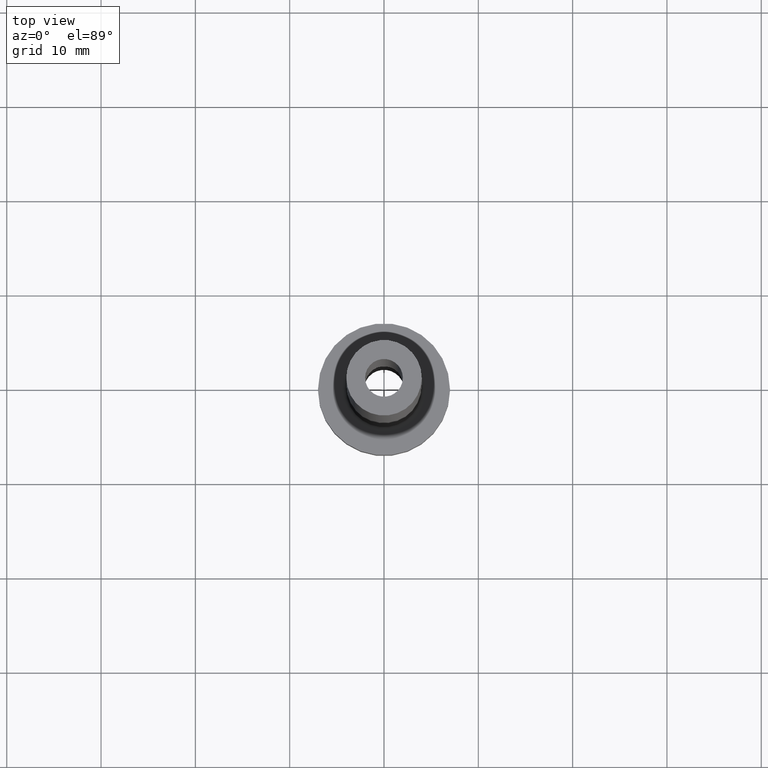
[diagram: clean part render]
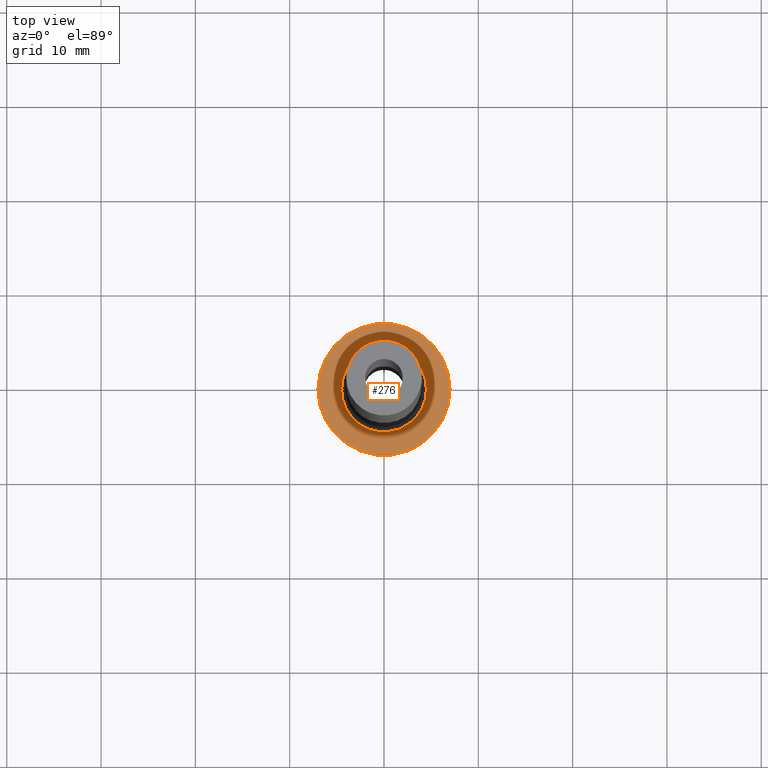
[diagram: same view with one face highlighted and labeled with its STEP entity id]
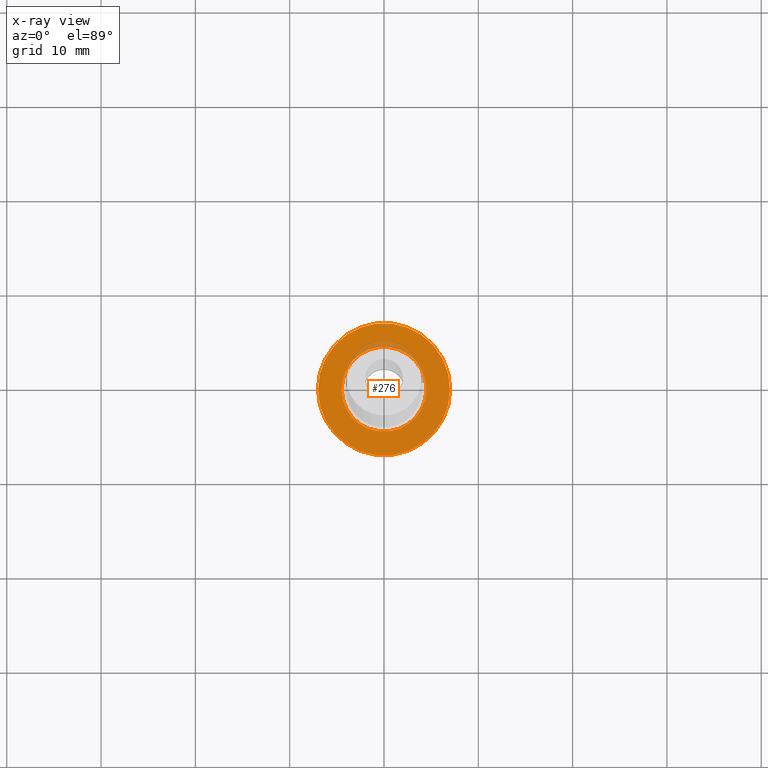
[diagram: x-ray of the same camera — body ghosted, the highlighted face saturated]
A machine part, top view. The second image highlights one B-rep face of the part: STEP entity #276.
The next image is the same camera in x-ray: the body ghosted, the highlighted face saturated — about 5% of this face is hidden behind the body in this view.
In plain terms, the highlighted planar face has unit normal (0, 0, 1).
Its self-contained STEP definition (entity closure, byte-faithful):
#14 = AXIS2_PLACEMENT_3D ( 'NONE', #56, #90, #59 ) ;
#18 = DIRECTION ( 'NONE',  ( 1.000000000000000000, 0.000000000000000000, -0.000000000000000000 ) ) ;
#29 = DIRECTION ( 'NONE',  ( 1.000000000000000000, 0.000000000000000000, 0.000000000000000000 ) ) ;
#31 = AXIS2_PLACEMENT_3D ( 'NONE', #163, #236, #29 ) ;
#55 = ORIENTED_EDGE ( 'NONE', *, *, #117, .T. ) ;
#56 = CARTESIAN_POINT ( 'NONE',  ( 0.000000000000000000, 0.000000000000000000, 5.000000000000000000 ) ) ;
#58 = CARTESIAN_POINT ( 'NONE',  ( -7.000000000000000000, 0.000000000000000000, 5.000000000000000000 ) ) ;
#59 = DIRECTION ( 'NONE',  ( 1.000000000000000000, 0.000000000000000000, 0.000000000000000000 ) ) ;
#76 = DIRECTION ( 'NONE',  ( 0.000000000000000000, 0.000000000000000000, 1.000000000000000000 ) ) ;
#90 = DIRECTION ( 'NONE',  ( 0.000000000000000000, 0.000000000000000000, 1.000000000000000000 ) ) ;
#106 = CARTESIAN_POINT ( 'NONE',  ( 4.500000000000000888, 0.000000000000000000, 5.000000000000002665 ) ) ;
#107 = VERTEX_POINT ( 'NONE', #58 ) ;
#108 = CARTESIAN_POINT ( 'NONE',  ( 7.000000000000000000, 8.572527594031473190E-16, 5.000000000000000000 ) ) ;
#113 = DIRECTION ( 'NONE',  ( 0.000000000000000000, 0.000000000000000000, 1.000000000000000000 ) ) ;
#117 = EDGE_CURVE ( 'NONE', #413, #193, #391, .T. ) ;
#137 = DIRECTION ( 'NONE',  ( -0.000000000000000000, -0.000000000000000000, -1.000000000000000000 ) ) ;
#139 = CARTESIAN_POINT ( 'NONE',  ( 0.000000000000000000, 0.000000000000000000, 5.000000000000000000 ) ) ;
#163 = CARTESIAN_POINT ( 'NONE',  ( 0.000000000000000000, 0.000000000000000000, 5.000000000000000000 ) ) ;
#174 = EDGE_CURVE ( 'NONE', #193, #413, #229, .T. ) ;
#183 = DIRECTION ( 'NONE',  ( 1.000000000000000000, 0.000000000000000000, 0.000000000000000000 ) ) ;
#187 = CARTESIAN_POINT ( 'NONE',  ( 0.000000000000000000, 0.000000000000000000, 5.000000000000000000 ) ) ;
#188 = AXIS2_PLACEMENT_3D ( 'NONE', #187, #113, #18 ) ;
#193 = VERTEX_POINT ( 'NONE', #106 ) ;
#229 = CIRCLE ( 'NONE', #428, 4.500000000000000888 ) ;
#236 = DIRECTION ( 'NONE',  ( -0.000000000000000000, -0.000000000000000000, -1.000000000000000000 ) ) ;
#240 = CIRCLE ( 'NONE', #409, 7.000000000000000000 ) ;
#276 = ADVANCED_FACE ( 'NONE', ( #298, #304 ), #403, .T. ) ;
#294 = CARTESIAN_POINT ( 'NONE',  ( 0.000000000000000000, 0.000000000000000000, 5.000000000000000000 ) ) ;
#298 = FACE_BOUND ( 'NONE', #342, .T. ) ;
#304 = FACE_OUTER_BOUND ( 'NONE', #372, .T. ) ;
#309 = EDGE_CURVE ( 'NONE', #107, #447, #240, .T. ) ;
#325 = ORIENTED_EDGE ( 'NONE', *, *, #415, .T. ) ;
#342 = EDGE_LOOP ( 'NONE', ( #451, #55 ) ) ;
#372 = EDGE_LOOP ( 'NONE', ( #384, #325 ) ) ;
#376 = CARTESIAN_POINT ( 'NONE',  ( -4.500000000000000888, 5.510910596163088569E-16, 5.000000000000002665 ) ) ;
#384 = ORIENTED_EDGE ( 'NONE', *, *, #309, .T. ) ;
#391 = CIRCLE ( 'NONE', #31, 4.500000000000000888 ) ;
#403 = PLANE ( 'NONE',  #188 ) ;
#409 = AXIS2_PLACEMENT_3D ( 'NONE', #294, #76, #183 ) ;
#413 = VERTEX_POINT ( 'NONE', #376 ) ;
#415 = EDGE_CURVE ( 'NONE', #447, #107, #429, .T. ) ;
#425 = DIRECTION ( 'NONE',  ( 1.000000000000000000, 0.000000000000000000, 0.000000000000000000 ) ) ;
#428 = AXIS2_PLACEMENT_3D ( 'NONE', #139, #137, #425 ) ;
#429 = CIRCLE ( 'NONE', #14, 7.000000000000000000 ) ;
#447 = VERTEX_POINT ( 'NONE', #108 ) ;
#451 = ORIENTED_EDGE ( 'NONE', *, *, #174, .T. ) ;